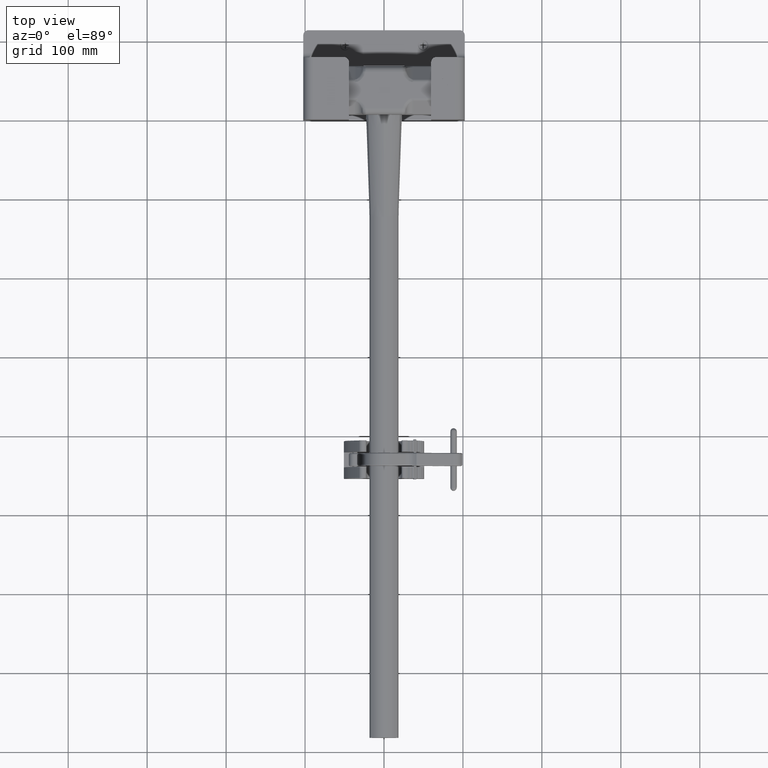
[diagram: clean part render]
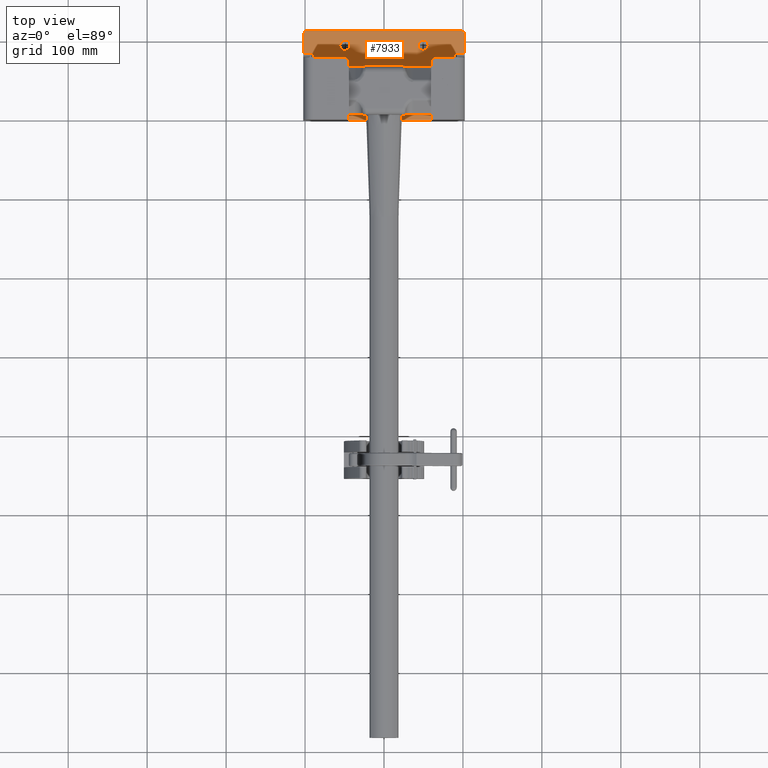
[diagram: same view with one face highlighted and labeled with its STEP entity id]
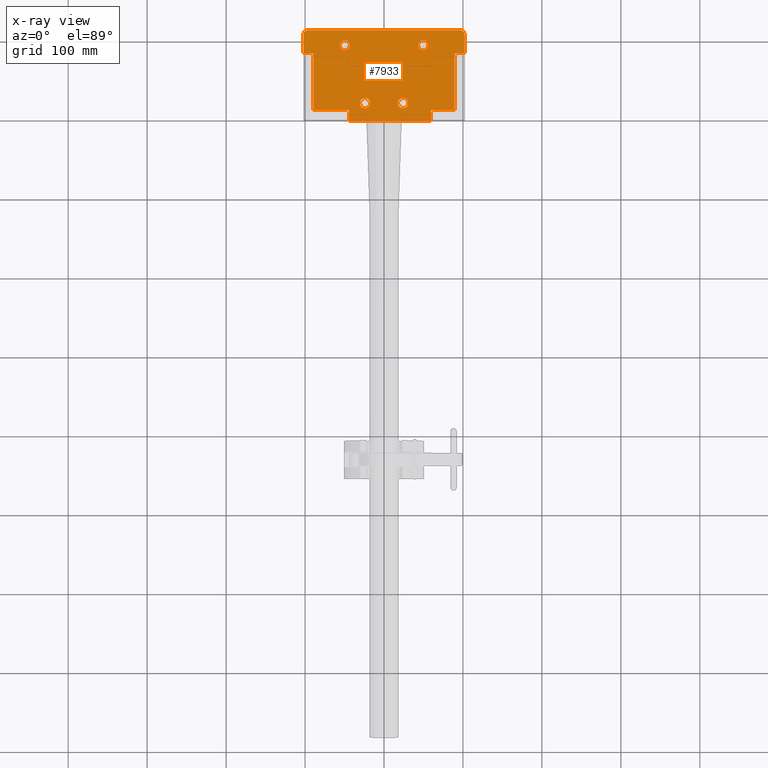
[diagram: x-ray of the same camera — body ghosted, the highlighted face saturated]
A machine part, top view. The second image highlights one B-rep face of the part: STEP entity #7933.
The next image is the same camera in x-ray: the body ghosted, the highlighted face saturated — about 0% of this face is hidden behind the body in this view.
In plain terms, the highlighted planar face has unit normal (0, 0, 1).
Its self-contained STEP definition (entity closure, byte-faithful):
#4745 = VERTEX_POINT ( 'NONE', #18036 ) ;
#4746 = VERTEX_POINT ( 'NONE', #18037 ) ;
#4751 = VERTEX_POINT ( 'NONE', #18042 ) ;
#4752 = VERTEX_POINT ( 'NONE', #18043 ) ;
#4757 = VERTEX_POINT ( 'NONE', #18048 ) ;
#4758 = VERTEX_POINT ( 'NONE', #18049 ) ;
#4763 = VERTEX_POINT ( 'NONE', #18054 ) ;
#4764 = VERTEX_POINT ( 'NONE', #18055 ) ;
#5006 = EDGE_CURVE ( 'NONE', #4745, #4746, #19216, .T. ) ;
#5055 = EDGE_CURVE ( 'NONE', #4751, #4752, #19251, .T. ) ;
#5062 = EDGE_CURVE ( 'NONE', #4757, #4758, #19262, .T. ) ;
#5069 = EDGE_CURVE ( 'NONE', #4763, #4764, #19273, .T. ) ;
#5197 = EDGE_CURVE ( 'NONE', #9101, #9100, #19458, .T. ) ;
#5203 = EDGE_CURVE ( 'NONE', #9102, #9103, #19466, .T. ) ;
#5215 = EDGE_CURVE ( 'NONE', #9111, #9112, #19475, .T. ) ;
#5256 = EDGE_CURVE ( 'NONE', #9115, #9114, #19501, .T. ) ;
#5275 = EDGE_CURVE ( 'NONE', #9131, #9132, #19504, .T. ) ;
#5301 = EDGE_CURVE ( 'NONE', #4764, #4763, #19535, .T. ) ;
#5310 = EDGE_CURVE ( 'NONE', #9111, #9101, #19541, .T. ) ;
#5313 = EDGE_CURVE ( 'NONE', #4758, #4757, #19543, .T. ) ;
#5315 = EDGE_CURVE ( 'NONE', #4746, #4745, #19545, .T. ) ;
#5317 = EDGE_CURVE ( 'NONE', #4752, #4751, #19547, .T. ) ;
#5320 = EDGE_CURVE ( 'NONE', #9132, #9112, #19534, .T. ) ;
#5322 = EDGE_CURVE ( 'NONE', #9100, #9103, #19550, .T. ) ;
#5325 = EDGE_CURVE ( 'NONE', #9114, #9135, #19540, .T. ) ;
#5327 = EDGE_CURVE ( 'NONE', #9102, #9133, #19551, .T. ) ;
#5329 = EDGE_CURVE ( 'NONE', #9134, #9135, #19553, .T. ) ;
#5332 = EDGE_CURVE ( 'NONE', #9133, #9134, #19555, .T. ) ;
#5337 = EDGE_CURVE ( 'NONE', #9136, #9115, #19542, .T. ) ;
#5341 = EDGE_CURVE ( 'NONE', #9136, #9131, #19562, .T. ) ;
#7933 = ADVANCED_FACE ( 'NONE', ( #31462, #31467, #31469, #31471, #31463 ), #32207, .T. ) ;
#9100 = VERTEX_POINT ( 'NONE', #47296 ) ;
#9101 = VERTEX_POINT ( 'NONE', #47297 ) ;
#9102 = VERTEX_POINT ( 'NONE', #47298 ) ;
#9103 = VERTEX_POINT ( 'NONE', #47299 ) ;
#9111 = VERTEX_POINT ( 'NONE', #47307 ) ;
#9112 = VERTEX_POINT ( 'NONE', #47308 ) ;
#9114 = VERTEX_POINT ( 'NONE', #47310 ) ;
#9115 = VERTEX_POINT ( 'NONE', #47311 ) ;
#9131 = VERTEX_POINT ( 'NONE', #47327 ) ;
#9132 = VERTEX_POINT ( 'NONE', #47328 ) ;
#9133 = VERTEX_POINT ( 'NONE', #47329 ) ;
#9134 = VERTEX_POINT ( 'NONE', #47330 ) ;
#9135 = VERTEX_POINT ( 'NONE', #47331 ) ;
#9136 = VERTEX_POINT ( 'NONE', #47332 ) ;
#9889 = ORIENTED_EDGE ( 'NONE', *, *, #5315, .F. ) ;
#9890 = ORIENTED_EDGE ( 'NONE', *, *, #5006, .F. ) ;
#9891 = ORIENTED_EDGE ( 'NONE', *, *, #5317, .F. ) ;
#9892 = ORIENTED_EDGE ( 'NONE', *, *, #5055, .F. ) ;
#9893 = ORIENTED_EDGE ( 'NONE', *, *, #5313, .F. ) ;
#9894 = ORIENTED_EDGE ( 'NONE', *, *, #5062, .F. ) ;
#9895 = ORIENTED_EDGE ( 'NONE', *, *, #5301, .F. ) ;
#9896 = ORIENTED_EDGE ( 'NONE', *, *, #5069, .F. ) ;
#9897 = ORIENTED_EDGE ( 'NONE', *, *, #5275, .T. ) ;
#9898 = ORIENTED_EDGE ( 'NONE', *, *, #5320, .T. ) ;
#9899 = ORIENTED_EDGE ( 'NONE', *, *, #5215, .F. ) ;
#9900 = ORIENTED_EDGE ( 'NONE', *, *, #5310, .T. ) ;
#9901 = ORIENTED_EDGE ( 'NONE', *, *, #5197, .T. ) ;
#9902 = ORIENTED_EDGE ( 'NONE', *, *, #5322, .T. ) ;
#9903 = ORIENTED_EDGE ( 'NONE', *, *, #5203, .F. ) ;
#9904 = ORIENTED_EDGE ( 'NONE', *, *, #5327, .T. ) ;
#9905 = ORIENTED_EDGE ( 'NONE', *, *, #5332, .T. ) ;
#9906 = ORIENTED_EDGE ( 'NONE', *, *, #5329, .T. ) ;
#9907 = ORIENTED_EDGE ( 'NONE', *, *, #5325, .F. ) ;
#9908 = ORIENTED_EDGE ( 'NONE', *, *, #5256, .F. ) ;
#9909 = ORIENTED_EDGE ( 'NONE', *, *, #5337, .F. ) ;
#9910 = ORIENTED_EDGE ( 'NONE', *, *, #5341, .T. ) ;
#13225 = AXIS2_PLACEMENT_3D ( 'NONE', #19052, #19053, #19054 ) ;
#16547 = EDGE_LOOP ( 'NONE', ( #9889, #9890 ) ) ;
#16555 = EDGE_LOOP ( 'NONE', ( #9891, #9892 ) ) ;
#16557 = EDGE_LOOP ( 'NONE', ( #9893, #9894 ) ) ;
#16559 = EDGE_LOOP ( 'NONE', ( #9895, #9896 ) ) ;
#16561 = EDGE_LOOP ( 'NONE', ( #9897, #9898, #9899, #9900, #9901, #9902, #9903, #9904, #9905, #9906, #9907, #9908, #9909, #9910 ) ) ;
#18036 = CARTESIAN_POINT ( 'NONE',  ( -2.203500000000000900, 3.750000000000000000, 0.4000000000000000800 ) ) ;
#18037 = CARTESIAN_POINT ( 'NONE',  ( -1.696500000000000800, 3.750000000000000000, 0.4000000000000000800 ) ) ;
#18042 = CARTESIAN_POINT ( 'NONE',  ( 1.696499999999999700, 3.750000000000000000, 0.4000000000000000800 ) ) ;
#18043 = CARTESIAN_POINT ( 'NONE',  ( 2.203499999999999600, 3.750000000000000000, 0.4000000000000000800 ) ) ;
#18048 = CARTESIAN_POINT ( 'NONE',  ( -1.203500000000000500, 0.8600000000000001000, 0.4000000000000000800 ) ) ;
#18049 = CARTESIAN_POINT ( 'NONE',  ( -0.6965000000000004500, 0.8600000000000001000, 0.4000000000000000800 ) ) ;
#18054 = CARTESIAN_POINT ( 'NONE',  ( 0.6964999999999993400, 0.8600000000000001000, 0.4000000000000000800 ) ) ;
#18055 = CARTESIAN_POINT ( 'NONE',  ( 1.203499999999999600, 0.8600000000000001000, 0.4000000000000000800 ) ) ;
#19052 = CARTESIAN_POINT ( 'NONE',  ( -1.950000000000000800, 3.750000000000000000, 0.4000000000000000800 ) ) ;
#19053 = DIRECTION ( 'NONE',  ( -0.0000000000000000000, -0.0000000000000000000, 1.000000000000000000 ) ) ;
#19054 = DIRECTION ( 'NONE',  ( 1.000000000000000000, 0.0000000000000000000, 0.0000000000000000000 ) ) ;
#19216 = CIRCLE ( 'NONE', #13225, 0.2534999999999998900 ) ;
#19251 = CIRCLE ( 'NONE', #19772, 0.2534999999999998900 ) ;
#19262 = CIRCLE ( 'NONE', #19775, 0.2535000000000000600 ) ;
#19273 = CIRCLE ( 'NONE', #19779, 0.2535000000000000600 ) ;
#19458 = LINE ( 'NONE', #23690, #19459 ) ;
#19459 = VECTOR ( 'NONE', #23692, 39.37007874015748100 ) ;
#19461 = VECTOR ( 'NONE', #23740, 39.37007874015748100 ) ;
#19466 = LINE ( 'NONE', #23711, #19467 ) ;
#19467 = VECTOR ( 'NONE', #23713, 39.37007874015748100 ) ;
#19475 = LINE ( 'NONE', #23696, #19461 ) ;
#19495 = VECTOR ( 'NONE', #23884, 39.37007874015748100 ) ;
#19501 = LINE ( 'NONE', #23840, #19502 ) ;
#19502 = VECTOR ( 'NONE', #23842, 39.37007874015748100 ) ;
#19504 = LINE ( 'NONE', #23882, #19495 ) ;
#19534 = LINE ( 'NONE', #23990, #19544 ) ;
#19535 = CIRCLE ( 'NONE', #19793, 0.2535000000000000600 ) ;
#19540 = LINE ( 'NONE', #24000, #19546 ) ;
#19541 = CIRCLE ( 'NONE', #19807, 0.2499999999999998100 ) ;
#19542 = LINE ( 'NONE', #24021, #19549 ) ;
#19543 = CIRCLE ( 'NONE', #19806, 0.2535000000000000600 ) ;
#19544 = VECTOR ( 'NONE', #23992, 39.37007874015748100 ) ;
#19545 = CIRCLE ( 'NONE', #19808, 0.2534999999999998900 ) ;
#19546 = VECTOR ( 'NONE', #24002, 39.37007874015748100 ) ;
#19547 = CIRCLE ( 'NONE', #19809, 0.2534999999999998900 ) ;
#19549 = VECTOR ( 'NONE', #24022, 39.37007874015748100 ) ;
#19550 = CIRCLE ( 'NONE', #19811, 0.2499999999999998100 ) ;
#19551 = LINE ( 'NONE', #24003, #19552 ) ;
#19552 = VECTOR ( 'NONE', #24005, 39.37007874015748100 ) ;
#19553 = LINE ( 'NONE', #24008, #19554 ) ;
#19554 = VECTOR ( 'NONE', #24009, 39.37007874015748100 ) ;
#19555 = LINE ( 'NONE', #24012, #19556 ) ;
#19556 = VECTOR ( 'NONE', #24013, 39.37007874015748100 ) ;
#19562 = LINE ( 'NONE', #24028, #19563 ) ;
#19563 = VECTOR ( 'NONE', #24029, 39.37007874015748100 ) ;
#19772 = AXIS2_PLACEMENT_3D ( 'NONE', #21004, #21008, #21010 ) ;
#19775 = AXIS2_PLACEMENT_3D ( 'NONE', #21045, #21048, #21050 ) ;
#19779 = AXIS2_PLACEMENT_3D ( 'NONE', #21085, #21088, #21090 ) ;
#19793 = AXIS2_PLACEMENT_3D ( 'NONE', #23908, #23946, #23948 ) ;
#19806 = AXIS2_PLACEMENT_3D ( 'NONE', #23943, #23975, #23977 ) ;
#19807 = AXIS2_PLACEMENT_3D ( 'NONE', #23926, #23968, #23970 ) ;
#19808 = AXIS2_PLACEMENT_3D ( 'NONE', #23965, #23982, #23983 ) ;
#19809 = AXIS2_PLACEMENT_3D ( 'NONE', #23972, #23987, #23989 ) ;
#19811 = AXIS2_PLACEMENT_3D ( 'NONE', #23979, #23996, #23998 ) ;
#20205 = AXIS2_PLACEMENT_3D ( 'NONE', #32217, #32219, #32220 ) ;
#21004 = CARTESIAN_POINT ( 'NONE',  ( 1.949999999999999700, 3.750000000000000000, 0.4000000000000000800 ) ) ;
#21008 = DIRECTION ( 'NONE',  ( -0.0000000000000000000, -0.0000000000000000000, 1.000000000000000000 ) ) ;
#21010 = DIRECTION ( 'NONE',  ( 1.000000000000000000, 0.0000000000000000000, 0.0000000000000000000 ) ) ;
#21045 = CARTESIAN_POINT ( 'NONE',  ( -0.9500000000000005100, 0.8600000000000001000, 0.4000000000000000800 ) ) ;
#21048 = DIRECTION ( 'NONE',  ( -0.0000000000000000000, -0.0000000000000000000, 1.000000000000000000 ) ) ;
#21050 = DIRECTION ( 'NONE',  ( 1.000000000000000000, 0.0000000000000000000, 0.0000000000000000000 ) ) ;
#21085 = CARTESIAN_POINT ( 'NONE',  ( 0.9499999999999994000, 0.8600000000000001000, 0.4000000000000000800 ) ) ;
#21088 = DIRECTION ( 'NONE',  ( -0.0000000000000000000, -0.0000000000000000000, 1.000000000000000000 ) ) ;
#21090 = DIRECTION ( 'NONE',  ( 1.000000000000000000, 0.0000000000000000000, 0.0000000000000000000 ) ) ;
#23690 = CARTESIAN_POINT ( 'NONE',  ( 3.775000000000000400, 4.500000000000000000, 0.4000000000000000200 ) ) ;
#23692 = DIRECTION ( 'NONE',  ( -1.000000000000000000, 0.0000000000000000000, 0.0000000000000000000 ) ) ;
#23696 = CARTESIAN_POINT ( 'NONE',  ( 4.024999999999999500, 4.500000000000000000, 0.4000000000000000800 ) ) ;
#23711 = CARTESIAN_POINT ( 'NONE',  ( -4.024999999999999500, 4.500000000000000000, 0.4000000000000000800 ) ) ;
#23713 = DIRECTION ( 'NONE',  ( 0.0000000000000000000, 1.000000000000000000, 0.0000000000000000000 ) ) ;
#23740 = DIRECTION ( 'NONE',  ( 0.0000000000000000000, -1.000000000000000000, 0.0000000000000000000 ) ) ;
#23840 = CARTESIAN_POINT ( 'NONE',  ( -1.750000000000000000, 0.0000000000000000000, 0.4000000000000000800 ) ) ;
#23842 = DIRECTION ( 'NONE',  ( -1.000000000000000000, 0.0000000000000000000, 0.0000000000000000000 ) ) ;
#23882 = CARTESIAN_POINT ( 'NONE',  ( 3.525000000000000800, 3.100000000000000100, 0.4000000000000000200 ) ) ;
#23884 = DIRECTION ( 'NONE',  ( 0.0000000000000000000, 1.000000000000000000, 0.0000000000000000000 ) ) ;
#23908 = CARTESIAN_POINT ( 'NONE',  ( 0.9499999999999994000, 0.8600000000000001000, 0.4000000000000000800 ) ) ;
#23926 = CARTESIAN_POINT ( 'NONE',  ( 3.775000000000001200, 4.250000000000000000, 0.4000000000000000800 ) ) ;
#23943 = CARTESIAN_POINT ( 'NONE',  ( -0.9500000000000005100, 0.8600000000000001000, 0.4000000000000000800 ) ) ;
#23946 = DIRECTION ( 'NONE',  ( -0.0000000000000000000, -0.0000000000000000000, 1.000000000000000000 ) ) ;
#23948 = DIRECTION ( 'NONE',  ( 1.000000000000000000, 0.0000000000000000000, 0.0000000000000000000 ) ) ;
#23965 = CARTESIAN_POINT ( 'NONE',  ( -1.950000000000000800, 3.750000000000000000, 0.4000000000000000800 ) ) ;
#23968 = DIRECTION ( 'NONE',  ( -0.0000000000000000000, 0.0000000000000000000, 1.000000000000000000 ) ) ;
#23970 = DIRECTION ( 'NONE',  ( 1.000000000000000000, 0.0000000000000000000, 0.0000000000000000000 ) ) ;
#23972 = CARTESIAN_POINT ( 'NONE',  ( 1.949999999999999700, 3.750000000000000000, 0.4000000000000000800 ) ) ;
#23975 = DIRECTION ( 'NONE',  ( -0.0000000000000000000, -0.0000000000000000000, 1.000000000000000000 ) ) ;
#23977 = DIRECTION ( 'NONE',  ( 1.000000000000000000, 0.0000000000000000000, 0.0000000000000000000 ) ) ;
#23979 = CARTESIAN_POINT ( 'NONE',  ( -3.775000000000000400, 4.250000000000000000, 0.4000000000000000800 ) ) ;
#23982 = DIRECTION ( 'NONE',  ( -0.0000000000000000000, -0.0000000000000000000, 1.000000000000000000 ) ) ;
#23983 = DIRECTION ( 'NONE',  ( 1.000000000000000000, 0.0000000000000000000, 0.0000000000000000000 ) ) ;
#23987 = DIRECTION ( 'NONE',  ( -0.0000000000000000000, -0.0000000000000000000, 1.000000000000000000 ) ) ;
#23989 = DIRECTION ( 'NONE',  ( 1.000000000000000000, 0.0000000000000000000, 0.0000000000000000000 ) ) ;
#23990 = CARTESIAN_POINT ( 'NONE',  ( -3.775000000000000400, 3.350000000000000100, 0.4000000000000000200 ) ) ;
#23992 = DIRECTION ( 'NONE',  ( 1.000000000000000000, -0.0000000000000000000, -0.0000000000000000000 ) ) ;
#23996 = DIRECTION ( 'NONE',  ( -0.0000000000000000000, 0.0000000000000000000, 1.000000000000000000 ) ) ;
#23998 = DIRECTION ( 'NONE',  ( 1.000000000000000000, 0.0000000000000000000, 0.0000000000000000000 ) ) ;
#24000 = CARTESIAN_POINT ( 'NONE',  ( -1.750000000000000200, 3.100000000000000100, 0.4000000000000000800 ) ) ;
#24002 = DIRECTION ( 'NONE',  ( -8.812412882787945300E-017, 1.000000000000000000, 0.0000000000000000000 ) ) ;
#24003 = CARTESIAN_POINT ( 'NONE',  ( -3.775000000000000400, 3.350000000000000100, 0.4000000000000000200 ) ) ;
#24005 = DIRECTION ( 'NONE',  ( 1.000000000000000000, -0.0000000000000000000, -0.0000000000000000000 ) ) ;
#24008 = CARTESIAN_POINT ( 'NONE',  ( -3.775000000000000400, 0.5000000000000000000, 0.4000000000000000200 ) ) ;
#24009 = DIRECTION ( 'NONE',  ( 1.000000000000000000, 0.0000000000000000000, 0.0000000000000000000 ) ) ;
#24012 = CARTESIAN_POINT ( 'NONE',  ( -3.525000000000000800, 0.2500000000000000000, 0.4000000000000000200 ) ) ;
#24013 = DIRECTION ( 'NONE',  ( 0.0000000000000000000, -1.000000000000000000, 0.0000000000000000000 ) ) ;
#24021 = CARTESIAN_POINT ( 'NONE',  ( 2.349999999999999200, 3.100000000000000100, 0.4000000000000000800 ) ) ;
#24022 = DIRECTION ( 'NONE',  ( -1.762482576557589100E-016, -1.000000000000000000, 0.0000000000000000000 ) ) ;
#24028 = CARTESIAN_POINT ( 'NONE',  ( -3.775000000000000400, 0.5000000000000000000, 0.4000000000000000200 ) ) ;
#24029 = DIRECTION ( 'NONE',  ( 1.000000000000000000, 0.0000000000000000000, 0.0000000000000000000 ) ) ;
#31462 = FACE_BOUND ( 'NONE', #16547, .T. ) ;
#31463 = FACE_OUTER_BOUND ( 'NONE', #16561, .T. ) ;
#31467 = FACE_BOUND ( 'NONE', #16555, .T. ) ;
#31469 = FACE_BOUND ( 'NONE', #16557, .T. ) ;
#31471 = FACE_BOUND ( 'NONE', #16559, .T. ) ;
#32207 = PLANE ( 'NONE',  #20205 ) ;
#32217 = CARTESIAN_POINT ( 'NONE',  ( -3.775000000000000400, 0.2500000000000000000, 0.4000000000000000200 ) ) ;
#32219 = DIRECTION ( 'NONE',  ( -0.0000000000000000000, 0.0000000000000000000, 1.000000000000000000 ) ) ;
#32220 = DIRECTION ( 'NONE',  ( 1.000000000000000000, 0.0000000000000000000, 0.0000000000000000000 ) ) ;
#47296 = CARTESIAN_POINT ( 'NONE',  ( -3.775000000000000400, 4.500000000000000000, 0.4000000000000000200 ) ) ;
#47297 = CARTESIAN_POINT ( 'NONE',  ( 3.775000000000001200, 4.500000000000000000, 0.4000000000000000200 ) ) ;
#47298 = CARTESIAN_POINT ( 'NONE',  ( -4.024999999999999500, 3.350000000000000100, 0.4000000000000000800 ) ) ;
#47299 = CARTESIAN_POINT ( 'NONE',  ( -4.024999999999999500, 4.250000000000000000, 0.4000000000000000800 ) ) ;
#47307 = CARTESIAN_POINT ( 'NONE',  ( 4.024999999999999500, 4.250000000000000000, 0.4000000000000000800 ) ) ;
#47308 = CARTESIAN_POINT ( 'NONE',  ( 4.024999999999999500, 3.350000000000000100, 0.4000000000000000800 ) ) ;
#47310 = CARTESIAN_POINT ( 'NONE',  ( -1.750000000000000000, 0.0000000000000000000, 0.4000000000000000800 ) ) ;
#47311 = CARTESIAN_POINT ( 'NONE',  ( 2.349999999999998800, 0.0000000000000000000, 0.4000000000000000800 ) ) ;
#47327 = CARTESIAN_POINT ( 'NONE',  ( 3.525000000000000800, 0.5000000000000000000, 0.4000000000000000200 ) ) ;
#47328 = CARTESIAN_POINT ( 'NONE',  ( 3.525000000000000800, 3.350000000000000100, 0.4000000000000000200 ) ) ;
#47329 = CARTESIAN_POINT ( 'NONE',  ( -3.525000000000000800, 3.350000000000000100, 0.4000000000000000200 ) ) ;
#47330 = CARTESIAN_POINT ( 'NONE',  ( -3.525000000000000800, 0.5000000000000000000, 0.4000000000000000200 ) ) ;
#47331 = CARTESIAN_POINT ( 'NONE',  ( -1.750000000000000000, 0.5000000000000001100, 0.4000000000000000800 ) ) ;
#47332 = CARTESIAN_POINT ( 'NONE',  ( 2.349999999999998800, 0.5000000000000001100, 0.4000000000000000800 ) ) ;